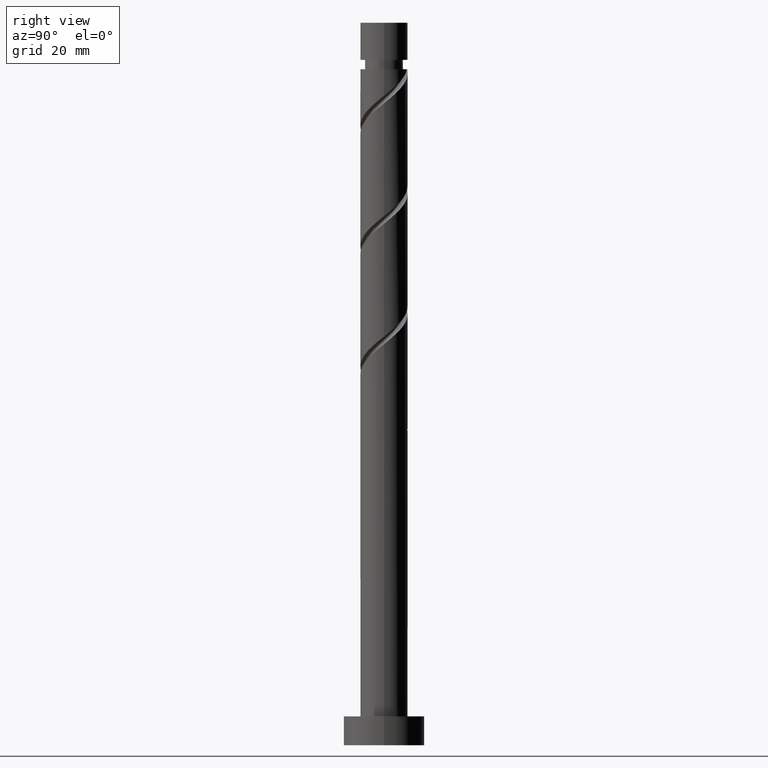
[diagram: clean part render]
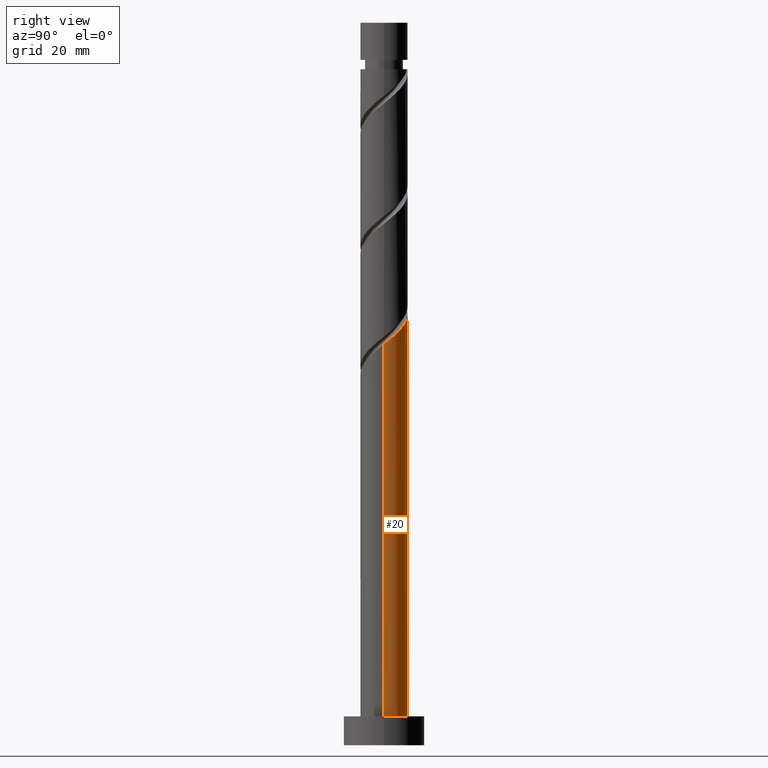
[diagram: same view with one face highlighted and labeled with its STEP entity id]
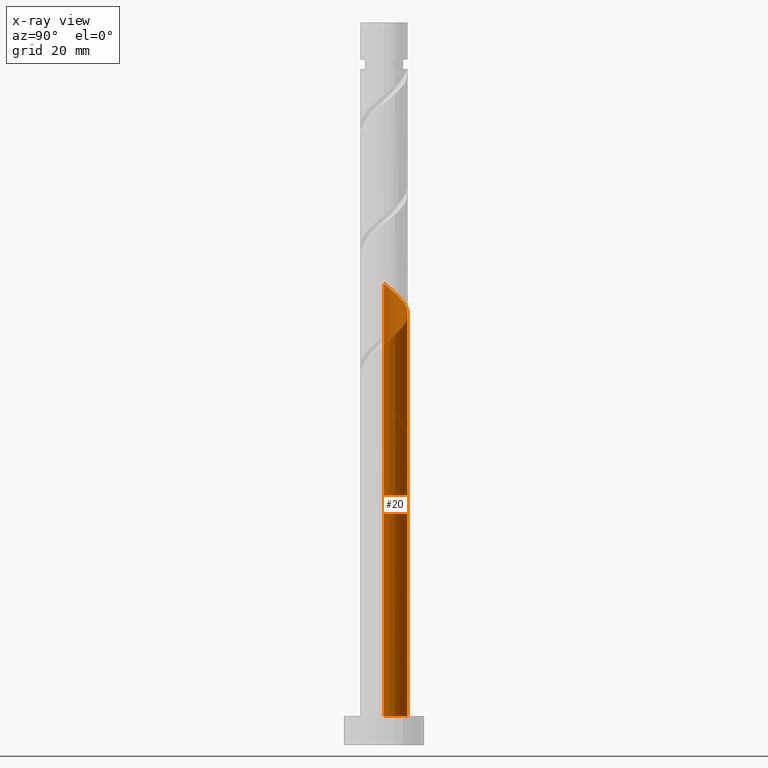
[diagram: x-ray of the same camera — body ghosted, the highlighted face saturated]
A machine part, right view. The second image highlights one B-rep face of the part: STEP entity #20.
The next image is the same camera in x-ray: the body ghosted, the highlighted face saturated — about 0% of this face is hidden behind the body in this view.
In plain terms, the highlighted cylindrical surface (edge-blend (fillet) strip) has radius 4.1 mm, axis along (-0, -0, -1).
Its self-contained STEP definition (entity closure, byte-faithful):
#20 = ADVANCED_FACE ( 'NONE', ( #343 ), #1215, .T. ) ;
#29 = CARTESIAN_POINT ( 'NONE',  ( -0.1795010172034399165, 4.147224233251988856, 74.75849681294801030 ) ) ;
#47 = ORIENTED_EDGE ( 'NONE', *, *, #1235, .F. ) ;
#75 = CARTESIAN_POINT ( 'NONE',  ( -3.249666833500782559, 2.582896615680648544, 58.09183014628136732 ) ) ;
#102 = AXIS2_PLACEMENT_3D ( 'NONE', #293, #398, #1034 ) ;
#110 = VERTEX_POINT ( 'NONE', #1312 ) ;
#153 = CARTESIAN_POINT ( 'NONE',  ( 1.110847155465535252, 3.999713496394928569, 73.71683014628135311 ) ) ;
#162 = CARTESIAN_POINT ( 'NONE',  ( 4.100000000000005862, 2.908661939941913273E-15, 69.40619437147778115 ) ) ;
#194 = CARTESIAN_POINT ( 'NONE',  ( -3.999713496394928125, 1.110847155465534142, 58.09183014628136021 ) ) ;
#208 = EDGE_CURVE ( 'NONE', #110, #1510, #360, .T. ) ;
#222 = CARTESIAN_POINT ( 'NONE',  ( -1.110847155465531921, 3.999713496394922796, 56.00849681294803162 ) ) ;
#225 = VECTOR ( 'NONE', #350, 1000.000000000000000 ) ;
#227 = DIRECTION ( 'NONE',  ( -0.000000000000000000, -0.000000000000000000, -1.000000000000000000 ) ) ;
#238 = CARTESIAN_POINT ( 'NONE',  ( -4.100000000000000533, 4.587889451660987449E-15, 60.31913258775163200 ) ) ;
#246 = CARTESIAN_POINT ( 'NONE',  ( 4.100000000000004974, 0.4120655042562809123, 69.74049894688559448 ) ) ;
#250 = CARTESIAN_POINT ( 'NONE',  ( 0.000000000000000000, 0.000000000000000000, 125.0000000000000000 ) ) ;
#256 = CARTESIAN_POINT ( 'NONE',  ( 3.888775766748022722, 1.452278379651416262, 70.59183014628135311 ) ) ;
#273 = CARTESIAN_POINT ( 'NONE',  ( 2.292457868830306111, 3.460682934868148930, 72.67516347961471013 ) ) ;
#286 = CARTESIAN_POINT ( 'NONE',  ( -4.099999999999999645, 0.000000000000000000, 125.0000000000000000 ) ) ;
#293 = CARTESIAN_POINT ( 'NONE',  ( 0.000000000000000000, 0.000000000000000000, 5.000000000000000000 ) ) ;
#299 = CARTESIAN_POINT ( 'NONE',  ( -2.582896615680651653, 3.249666833500790109, 56.00849681294803162 ) ) ;
#306 = CARTESIAN_POINT ( 'NONE',  ( -4.100000000000005862, 0.2335923235303739021, 79.63334994893715191 ) ) ;
#312 = CARTESIAN_POINT ( 'NONE',  ( -3.730198215631538972, 1.701652512147919349, 78.40433014628136732 ) ) ;
#318 = CARTESIAN_POINT ( 'NONE',  ( -0.4656730691310451142, 4.073468864823452051, 55.48766347961468171 ) ) ;
#333 = CARTESIAN_POINT ( 'NONE',  ( -1.701652512147916463, 3.730198215631533643, 56.52933014628135311 ) ) ;
#338 = CARTESIAN_POINT ( 'NONE',  ( -2.771062351165542115, 3.021789775274397183, 57.57099681294803162 ) ) ;
#343 = FACE_OUTER_BOUND ( 'NONE', #563, .T. ) ;
#350 = DIRECTION ( 'NONE',  ( -0.000000000000000000, -0.000000000000000000, -1.000000000000000000 ) ) ;
#360 = LINE ( 'NONE', #1085, #225 ) ;
#377 = ORIENTED_EDGE ( 'NONE', *, *, #1160, .F. ) ;
#386 = CARTESIAN_POINT ( 'NONE',  ( 4.018000000000006011, 0.8158896984274278674, 70.07099681294802451 ) ) ;
#392 = CARTESIAN_POINT ( 'NONE',  ( -2.017587497666033958, 3.569221300124405527, 76.32099681294801030 ) ) ;
#398 = DIRECTION ( 'NONE',  ( 0.000000000000000000, 0.000000000000000000, 1.000000000000000000 ) ) ;
#405 = VERTEX_POINT ( 'NONE', #668 ) ;
#441 = CARTESIAN_POINT ( 'NONE',  ( 4.099999999999999645, 5.021051876504147385E-16, 125.0000000000000000 ) ) ;
#458 = CIRCLE ( 'NONE', #1065, 4.099999999999999645 ) ;
#469 = CARTESIAN_POINT ( 'NONE',  ( 0.000000000000000000, 0.000000000000000000, 54.44599681294803872 ) ) ;
#504 = CARTESIAN_POINT ( 'NONE',  ( 3.569221300124406859, 2.017587497666033514, 71.11266347961472434 ) ) ;
#513 = CARTESIAN_POINT ( 'NONE',  ( -0.8158896984274277564, 4.018000000000006011, 75.27933014628135311 ) ) ;
#532 = VECTOR ( 'NONE', #645, 1000.000000000000000 ) ;
#535 = CARTESIAN_POINT ( 'NONE',  ( -0.8158896984274279784, 4.018000000000006899, 54.44599681294802451 ) ) ;
#558 = CARTESIAN_POINT ( 'NONE',  ( 0.1795010172034414431, 4.147224233251982639, 54.96683014628135311 ) ) ;
#563 = EDGE_LOOP ( 'NONE', ( #715, #1148, #912, #607, #377, #1427, #47, #1233 ) ) ;
#573 = CARTESIAN_POINT ( 'NONE',  ( -3.888775766748016505, 1.452278379651414930, 59.13349681294804583 ) ) ;
#607 = ORIENTED_EDGE ( 'NONE', *, *, #208, .F. ) ;
#627 = CARTESIAN_POINT ( 'NONE',  ( 0.4656730691310476677, 4.073468864823459157, 74.23766347961468171 ) ) ;
#645 = DIRECTION ( 'NONE',  ( -0.000000000000000000, -0.000000000000000000, -1.000000000000000000 ) ) ;
#661 = CARTESIAN_POINT ( 'NONE',  ( -4.100000000000005862, -3.448413640137319873E-15, 58.98952770481110974 ) ) ;
#668 = CARTESIAN_POINT ( 'NONE',  ( 4.099999999999999645, 5.021051876504147385E-16, 5.000000000000000000 ) ) ;
#681 =( BOUNDED_CURVE ( )  B_SPLINE_CURVE ( 2, ( #162, #246, #386, #256, #504, #869, #1360, #273, #748, #153, #627, #29, #513, #991, #392, #875, #1368, #958, #312, #999, #1139, #306, #1018 ),
 .UNSPECIFIED., .F., .T. ) 
 B_SPLINE_CURVE_WITH_KNOTS ( ( 3, 2, 2, 2, 2, 2, 2, 2, 2, 2, 2, 3 ),
 ( 0.1795322023138553047, 0.1875000000000000000, 0.1999999999999999556, 0.2125000000000000222, 0.2249999999999999778, 0.2375000000000000444, 0.2500000000000000000, 0.2624999999999999556, 0.2750000000000000222, 0.2874999999999999778, 0.3000000000000000444, 0.3045322023138552492 ),
 .UNSPECIFIED. ) 
 CURVE ( )  GEOMETRIC_REPRESENTATION_ITEM ( )  RATIONAL_B_SPLINE_CURVE ( ( 0.9039174447099390663, 0.9019565955404684754, 0.9090909090909168322, 0.8978984914501328962, 0.9090909090909168322, 0.8978984914501328962, 0.9090909090909168322, 0.8978984914501328962, 0.9090909090909168322, 0.8978984914501328962, 0.9090909090909168322, 0.8978984914501328962, 0.9090909090909168322, 0.8978984914501328962, 0.9090909090909168322, 0.8978984914501328962, 0.9090909090909168322, 0.8978984914501328962, 0.9090909090909168322, 0.8978984914501328962, 0.9090909090909168322, 0.9050328050005811420, 0.9039174447099389553 ) ) 
 REPRESENTATION_ITEM ( '' )  );
#708 = VERTEX_POINT ( 'NONE', #1567 ) ;
#713 = VECTOR ( 'NONE', #918, 1000.000000000000000 ) ;
#715 = ORIENTED_EDGE ( 'NONE', *, *, #992, .F. ) ;
#729 = DIRECTION ( 'NONE',  ( -1.000000000000000000, 0.000000000000000000, 0.000000000000000000 ) ) ;
#748 = CARTESIAN_POINT ( 'NONE',  ( 1.701652512147920460, 3.730198215631538972, 73.19599681294802451 ) ) ;
#755 = CARTESIAN_POINT ( 'NONE',  ( -0.8158896984274279784, 4.018000000000006899, 54.44599681294802451 ) ) ;
#758 = EDGE_CURVE ( 'NONE', #859, #1413, #458, .T. ) ;
#764 = CARTESIAN_POINT ( 'NONE',  ( -3.460682934868150262, 2.292457868830304335, 57.05016347961468881 ) ) ;
#775 = CARTESIAN_POINT ( 'NONE',  ( -3.021789775274400291, 2.771062351165547444, 56.52933014628136021 ) ) ;
#808 = CARTESIAN_POINT ( 'NONE',  ( 0.8158896984274293107, 4.017999999999999794, 54.44599681294802451 ) ) ;
#824 = CARTESIAN_POINT ( 'NONE',  ( -2.292457868830300338, 3.460682934868145377, 57.05016347961469592 ) ) ;
#836 =( BOUNDED_CURVE ( )  B_SPLINE_CURVE ( 2, ( #535, #1261, #896, #299, #775, #764, #1010, #194, #1525, #1270, #661 ),
 .UNSPECIFIED., .F., .T. ) 
 B_SPLINE_CURVE_WITH_KNOTS ( ( 3, 2, 2, 2, 2, 3 ),
 ( 0.000000000000000000, 0.01249999999999995559, 0.02500000000000002220, 0.03749999999999997780, 0.05000000000000004441, 0.05453220231385537409 ),
 .UNSPECIFIED. ) 
 CURVE ( )  GEOMETRIC_REPRESENTATION_ITEM ( )  RATIONAL_B_SPLINE_CURVE ( ( 0.9090909090909168322, 0.8978984914501328962, 0.9090909090909168322, 0.8978984914501328962, 0.9090909090909168322, 0.8978984914501328962, 0.9090909090909168322, 0.8978984914501328962, 0.9090909090909168322, 0.9050328050005810310, 0.9039174447099389553 ) ) 
 REPRESENTATION_ITEM ( '' )  );
#859 = VERTEX_POINT ( 'NONE', #755 ) ;
#869 = CARTESIAN_POINT ( 'NONE',  ( 3.249666833500790553, 2.582896615680651209, 71.63349681294805293 ) ) ;
#875 = CARTESIAN_POINT ( 'NONE',  ( -2.582896615680651653, 3.249666833500790109, 76.84183014628138153 ) ) ;
#878 = VERTEX_POINT ( 'NONE', #1091 ) ;
#896 = CARTESIAN_POINT ( 'NONE',  ( -2.017587497666033958, 3.569221300124405527, 55.48766347961468881 ) ) ;
#912 = ORIENTED_EDGE ( 'NONE', *, *, #1049, .T. ) ;
#918 = DIRECTION ( 'NONE',  ( -0.000000000000000000, -0.000000000000000000, -1.000000000000000000 ) ) ;
#956 = CARTESIAN_POINT ( 'NONE',  ( 0.8158896984274293107, 4.017999999999999794, 54.44599681294802451 ) ) ;
#958 = CARTESIAN_POINT ( 'NONE',  ( -3.460682934868150262, 2.292457868830304335, 77.88349681294805293 ) ) ;
#991 = CARTESIAN_POINT ( 'NONE',  ( -1.452278379651416484, 3.888775766748022278, 75.80016347961471013 ) ) ;
#992 = EDGE_CURVE ( 'NONE', #878, #708, #681, .T. ) ;
#999 = CARTESIAN_POINT ( 'NONE',  ( -3.999713496394928125, 1.110847155465534142, 78.92516347961466749 ) ) ;
#1000 =( BOUNDED_CURVE ( )  B_SPLINE_CURVE ( 2, ( #1054, #1535, #1162, #573, #1320, #75, #338, #824, #333, #222, #318, #558, #808 ),
 .UNSPECIFIED., .F., .T. ) 
 B_SPLINE_CURVE_WITH_KNOTS ( ( 3, 2, 2, 2, 2, 2, 3 ),
 ( 0.9295322023138552492, 0.9375000000000000000, 0.9499999999999999556, 0.9625000000000000222, 0.9749999999999999778, 0.9875000000000000444, 1.000000000000000000 ),
 .UNSPECIFIED. ) 
 CURVE ( )  GEOMETRIC_REPRESENTATION_ITEM ( )  RATIONAL_B_SPLINE_CURVE ( ( 0.9039174447099327381, 0.9019565955404622581, 0.9090909090909106149, 0.8978984914501266790, 0.9090909090909106149, 0.8978984914501266790, 0.9090909090909106149, 0.8978984914501266790, 0.9090909090909106149, 0.8978984914501266790, 0.9090909090909106149, 0.8978984914501266790, 0.9090909090909106149 ) ) 
 REPRESENTATION_ITEM ( '' )  );
#1010 = CARTESIAN_POINT ( 'NONE',  ( -3.730198215631538972, 1.701652512147919349, 57.57099681294803162 ) ) ;
#1018 = CARTESIAN_POINT ( 'NONE',  ( -4.100000000000005862, -3.448413640137319873E-15, 79.82286103814443834 ) ) ;
#1034 = DIRECTION ( 'NONE',  ( 1.000000000000000000, 0.000000000000000000, 0.000000000000000000 ) ) ;
#1044 = LINE ( 'NONE', #441, #713 ) ;
#1046 = EDGE_CURVE ( 'NONE', #708, #1338, #1385, .T. ) ;
#1049 = EDGE_CURVE ( 'NONE', #405, #1510, #1069, .T. ) ;
#1054 = CARTESIAN_POINT ( 'NONE',  ( -4.100000000000000533, 4.587889451660987449E-15, 60.31913258775163200 ) ) ;
#1065 = AXIS2_PLACEMENT_3D ( 'NONE', #469, #1311, #1203 ) ;
#1069 = CIRCLE ( 'NONE', #102, 4.099999999999999645 ) ;
#1085 = CARTESIAN_POINT ( 'NONE',  ( -4.099999999999999645, 0.000000000000000000, 125.0000000000000000 ) ) ;
#1091 = CARTESIAN_POINT ( 'NONE',  ( 4.100000000000005862, 2.908661939941913273E-15, 69.40619437147778115 ) ) ;
#1104 = CARTESIAN_POINT ( 'NONE',  ( -4.099999999999999645, 0.000000000000000000, 5.000000000000000000 ) ) ;
#1139 = CARTESIAN_POINT ( 'NONE',  ( -4.073468864823458269, 0.4656730691310468351, 79.44599681294802451 ) ) ;
#1148 = ORIENTED_EDGE ( 'NONE', *, *, #1283, .T. ) ;
#1160 = EDGE_CURVE ( 'NONE', #859, #110, #836, .T. ) ;
#1162 = CARTESIAN_POINT ( 'NONE',  ( -4.017999999999999794, 0.8158896984274283115, 59.65433014628135311 ) ) ;
#1203 = DIRECTION ( 'NONE',  ( 0.000000000000000000, 1.000000000000000000, -5.077239441883338107E-15 ) ) ;
#1215 = CYLINDRICAL_SURFACE ( 'NONE', #1517, 4.099999999999999645 ) ;
#1233 = ORIENTED_EDGE ( 'NONE', *, *, #1046, .F. ) ;
#1235 = EDGE_CURVE ( 'NONE', #1338, #1413, #1000, .T. ) ;
#1261 = CARTESIAN_POINT ( 'NONE',  ( -1.452278379651416484, 3.888775766748022278, 54.96683014628136732 ) ) ;
#1270 = CARTESIAN_POINT ( 'NONE',  ( -4.100000000000006750, 0.2335923235303674905, 58.80001661560381621 ) ) ;
#1283 = EDGE_CURVE ( 'NONE', #878, #405, #1044, .T. ) ;
#1311 = DIRECTION ( 'NONE',  ( 0.000000000000000000, -4.231032868236117193E-15, -1.000000000000000000 ) ) ;
#1312 = CARTESIAN_POINT ( 'NONE',  ( -4.100000000000005862, -3.448413640137319873E-15, 58.98952770481110974 ) ) ;
#1320 = CARTESIAN_POINT ( 'NONE',  ( -3.569221300124400198, 2.017587497666031737, 58.61266347961468881 ) ) ;
#1338 = VERTEX_POINT ( 'NONE', #238 ) ;
#1360 = CARTESIAN_POINT ( 'NONE',  ( 2.771062351165547888, 3.021789775274399847, 72.15433014628136732 ) ) ;
#1368 = CARTESIAN_POINT ( 'NONE',  ( -3.021789775274400291, 2.771062351165547444, 77.36266347961468171 ) ) ;
#1385 = LINE ( 'NONE', #286, #532 ) ;
#1413 = VERTEX_POINT ( 'NONE', #956 ) ;
#1427 = ORIENTED_EDGE ( 'NONE', *, *, #758, .T. ) ;
#1510 = VERTEX_POINT ( 'NONE', #1104 ) ;
#1517 = AXIS2_PLACEMENT_3D ( 'NONE', #250, #227, #729 ) ;
#1525 = CARTESIAN_POINT ( 'NONE',  ( -4.073468864823458269, 0.4656730691310468351, 58.61266347961468171 ) ) ;
#1535 = CARTESIAN_POINT ( 'NONE',  ( -4.099999999999999645, 0.4120655042562792469, 59.98482801234379025 ) ) ;
#1567 = CARTESIAN_POINT ( 'NONE',  ( -4.100000000000005862, -3.448413640137319873E-15, 79.82286103814443834 ) ) ;